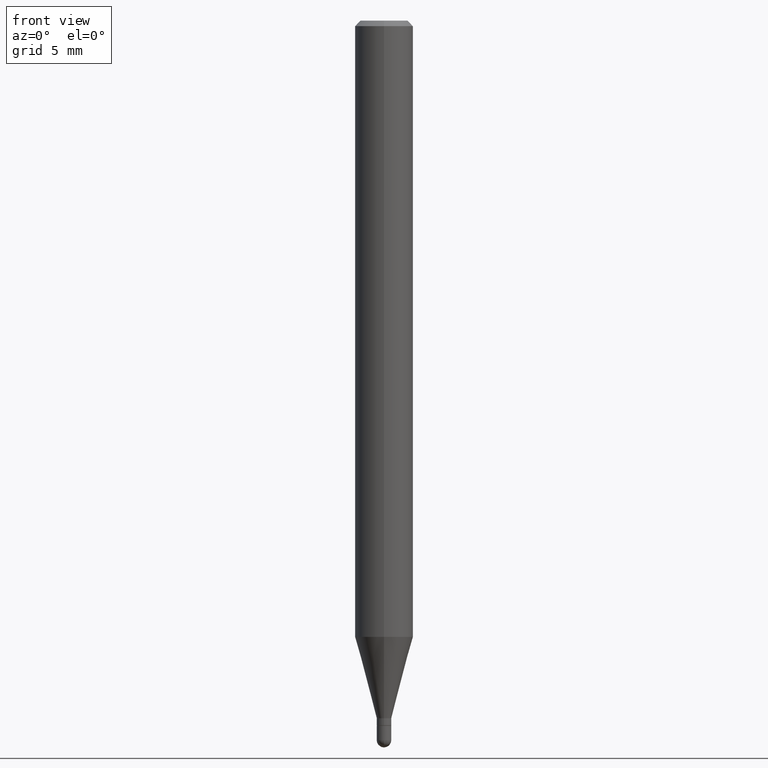
[diagram: clean part render]
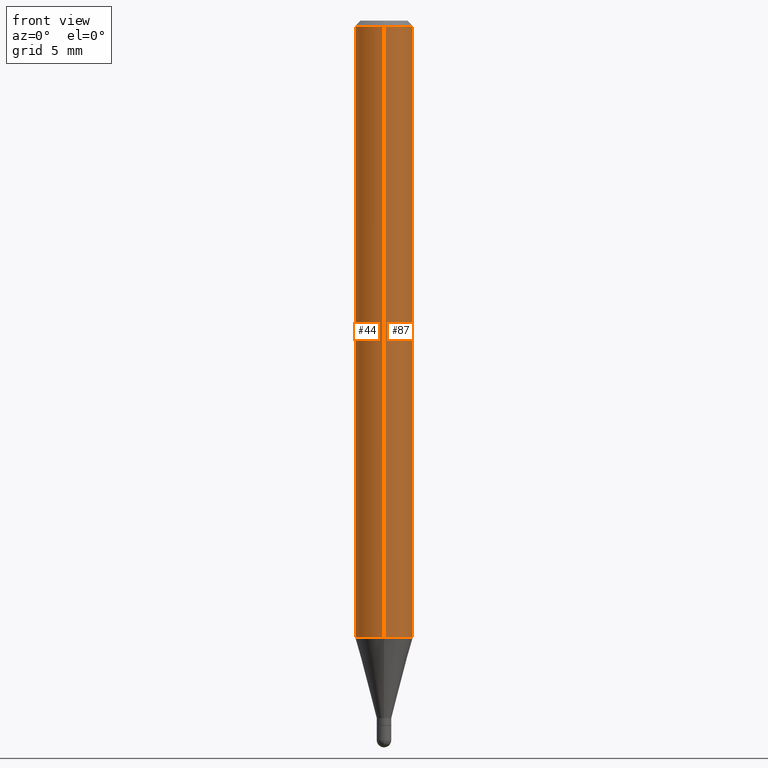
[diagram: same view with one multi-face feature highlighted, each face labeled with its STEP entity id]
A machine part, front view. The highlighted faces form ONE feature: a constant-radius fillet chain: 2 tangent blend faces with common blend radius 2.0002 mm. The faces share edges in the B-rep.
Their STEP definitions:
[1] entity #87 (Cylinder):
#16 = LINE ( 'NONE', #171, #182 ) ;
#22 = VERTEX_POINT ( 'NONE', #128 ) ;
#28 = LINE ( 'NONE', #504, #331 ) ;
#33 = CARTESIAN_POINT ( 'NONE',  ( -5.499083108677528180E-16, -0.07875000000000582923, -1.669122399813057989 ) ) ;
#52 = AXIS2_PLACEMENT_3D ( 'NONE', #98, #211, #343 ) ;
#58 = CIRCLE ( 'NONE', #108, 0.07875000000000000056 ) ;
#75 = CARTESIAN_POINT ( 'NONE',  ( 4.079796025343252111E-29, -5.830560560031684325E-15, -1.669122399813058433 ) ) ;
#87 = ADVANCED_FACE ( 'NONE', ( #493 ), #281, .T. ) ;
#88 = EDGE_CURVE ( 'NONE', #502, #22, #58, .T. ) ;
#98 = CARTESIAN_POINT ( 'NONE',  ( 0.000000000000000000, 0.000000000000000000, 0.000000000000000000 ) ) ;
#108 = AXIS2_PLACEMENT_3D ( 'NONE', #138, #340, #486 ) ;
#120 = EDGE_LOOP ( 'NONE', ( #364, #202, #419, #437 ) ) ;
#128 = CARTESIAN_POINT ( 'NONE',  ( 5.595524044111199211E-16, 0.07874999999999994504, -0.01500000000000004108 ) ) ;
#138 = CARTESIAN_POINT ( 'NONE',  ( 3.666414181907922070E-31, -5.239783997283198085E-17, -0.01499999999999976526 ) ) ;
#160 = DIRECTION ( 'NONE',  ( -6.982962677686264344E-15, -1.000000000000000000, 3.469013325287953293E-15 ) ) ;
#171 = CARTESIAN_POINT ( 'NONE',  ( 5.595524044110787031E-16, 0.07875000000000000056, -2.750886598573721673E-16 ) ) ;
#182 = VECTOR ( 'NONE', #363, 39.37007874015748143 ) ;
#202 = ORIENTED_EDGE ( 'NONE', *, *, #503, .T. ) ;
#211 = DIRECTION ( 'NONE',  ( -2.444276121271986138E-29, 3.493189331522186389E-15, 1.000000000000000000 ) ) ;
#233 = CARTESIAN_POINT ( 'NONE',  ( 5.595524044111194280E-16, 0.07874999999999415801, -1.669122399813058655 ) ) ;
#264 = DIRECTION ( 'NONE',  ( -2.444276121271985858E-29, 3.493189331522185995E-15, 1.000000000000000000 ) ) ;
#269 = DIRECTION ( 'NONE',  ( -2.444276121271986138E-29, 3.493189331522186389E-15, 1.000000000000000000 ) ) ;
#281 = CYLINDRICAL_SURFACE ( 'NONE', #52, 0.07875000000000000056 ) ;
#287 = CIRCLE ( 'NONE', #423, 0.07875000000000000056 ) ;
#299 = VERTEX_POINT ( 'NONE', #233 ) ;
#331 = VECTOR ( 'NONE', #264, 39.37007874015748143 ) ;
#340 = DIRECTION ( 'NONE',  ( -2.444276121271986138E-29, 3.493189331522186389E-15, 1.000000000000000000 ) ) ;
#341 = EDGE_CURVE ( 'NONE', #362, #299, #287, .T. ) ;
#343 = DIRECTION ( 'NONE',  ( -6.982962677686264344E-15, -1.000000000000000000, 3.493189331522186389E-15 ) ) ;
#362 = VERTEX_POINT ( 'NONE', #33 ) ;
#363 = DIRECTION ( 'NONE',  ( -2.444276121271985858E-29, 3.493189331522185995E-15, 1.000000000000000000 ) ) ;
#364 = ORIENTED_EDGE ( 'NONE', *, *, #341, .T. ) ;
#411 = CARTESIAN_POINT ( 'NONE',  ( -5.499083108677930499E-16, -0.07875000000000004219, -0.01499999999999948944 ) ) ;
#419 = ORIENTED_EDGE ( 'NONE', *, *, #88, .F. ) ;
#423 = AXIS2_PLACEMENT_3D ( 'NONE', #75, #269, #160 ) ;
#437 = ORIENTED_EDGE ( 'NONE', *, *, #455, .F. ) ;
#455 = EDGE_CURVE ( 'NONE', #362, #502, #28, .T. ) ;
#486 = DIRECTION ( 'NONE',  ( -6.982962677686264344E-15, -1.000000000000000000, 3.496114991891765576E-15 ) ) ;
#493 = FACE_OUTER_BOUND ( 'NONE', #120, .T. ) ;
#502 = VERTEX_POINT ( 'NONE', #411 ) ;
#503 = EDGE_CURVE ( 'NONE', #299, #22, #16, .T. ) ;
#504 = CARTESIAN_POINT ( 'NONE',  ( -5.499083108677933457E-16, -0.07875000000000000056, 2.750886598573721673E-16 ) ) ;
[2] entity #44 (Cylinder):
#11 = CIRCLE ( 'NONE', #302, 0.07875000000000000056 ) ;
#16 = LINE ( 'NONE', #171, #182 ) ;
#22 = VERTEX_POINT ( 'NONE', #128 ) ;
#28 = LINE ( 'NONE', #504, #331 ) ;
#33 = CARTESIAN_POINT ( 'NONE',  ( -5.499083108677528180E-16, -0.07875000000000582923, -1.669122399813057989 ) ) ;
#34 = CYLINDRICAL_SURFACE ( 'NONE', #250, 0.07875000000000000056 ) ;
#44 = ADVANCED_FACE ( 'NONE', ( #334 ), #34, .T. ) ;
#64 = ORIENTED_EDGE ( 'NONE', *, *, #205, .T. ) ;
#81 = ORIENTED_EDGE ( 'NONE', *, *, #291, .F. ) ;
#85 = CARTESIAN_POINT ( 'NONE',  ( 4.079796025343252111E-29, -5.830560560031684325E-15, -1.669122399813058433 ) ) ;
#126 = CIRCLE ( 'NONE', #345, 0.07875000000000000056 ) ;
#128 = CARTESIAN_POINT ( 'NONE',  ( 5.595524044111199211E-16, 0.07874999999999994504, -0.01500000000000004108 ) ) ;
#162 = ORIENTED_EDGE ( 'NONE', *, *, #455, .T. ) ;
#169 = DIRECTION ( 'NONE',  ( -2.444276121271986138E-29, 3.493189331522186389E-15, 1.000000000000000000 ) ) ;
#171 = CARTESIAN_POINT ( 'NONE',  ( 5.595524044110787031E-16, 0.07875000000000000056, -2.750886598573721673E-16 ) ) ;
#182 = VECTOR ( 'NONE', #363, 39.37007874015748143 ) ;
#188 = ORIENTED_EDGE ( 'NONE', *, *, #503, .F. ) ;
#190 = CARTESIAN_POINT ( 'NONE',  ( 0.000000000000000000, 0.000000000000000000, 0.000000000000000000 ) ) ;
#205 = EDGE_CURVE ( 'NONE', #299, #362, #11, .T. ) ;
#233 = CARTESIAN_POINT ( 'NONE',  ( 5.595524044111194280E-16, 0.07874999999999415801, -1.669122399813058655 ) ) ;
#250 = AXIS2_PLACEMENT_3D ( 'NONE', #190, #282, #352 ) ;
#264 = DIRECTION ( 'NONE',  ( -2.444276121271985858E-29, 3.493189331522185995E-15, 1.000000000000000000 ) ) ;
#282 = DIRECTION ( 'NONE',  ( -2.444276121271986138E-29, 3.493189331522186389E-15, 1.000000000000000000 ) ) ;
#291 = EDGE_CURVE ( 'NONE', #22, #502, #126, .T. ) ;
#293 = EDGE_LOOP ( 'NONE', ( #188, #64, #162, #81 ) ) ;
#299 = VERTEX_POINT ( 'NONE', #233 ) ;
#302 = AXIS2_PLACEMENT_3D ( 'NONE', #85, #169, #328 ) ;
#316 = DIRECTION ( 'NONE',  ( -6.982962677686264344E-15, -1.000000000000000000, 3.496114991891765576E-15 ) ) ;
#328 = DIRECTION ( 'NONE',  ( -6.982962677686264344E-15, -1.000000000000000000, 3.469013325287953293E-15 ) ) ;
#331 = VECTOR ( 'NONE', #264, 39.37007874015748143 ) ;
#334 = FACE_OUTER_BOUND ( 'NONE', #293, .T. ) ;
#345 = AXIS2_PLACEMENT_3D ( 'NONE', #409, #482, #316 ) ;
#352 = DIRECTION ( 'NONE',  ( -6.982962677686264344E-15, -1.000000000000000000, 3.493189331522186389E-15 ) ) ;
#362 = VERTEX_POINT ( 'NONE', #33 ) ;
#363 = DIRECTION ( 'NONE',  ( -2.444276121271985858E-29, 3.493189331522185995E-15, 1.000000000000000000 ) ) ;
#409 = CARTESIAN_POINT ( 'NONE',  ( 3.666414181907922070E-31, -5.239783997283198085E-17, -0.01499999999999976526 ) ) ;
#411 = CARTESIAN_POINT ( 'NONE',  ( -5.499083108677930499E-16, -0.07875000000000004219, -0.01499999999999948944 ) ) ;
#455 = EDGE_CURVE ( 'NONE', #362, #502, #28, .T. ) ;
#482 = DIRECTION ( 'NONE',  ( -2.444276121271986138E-29, 3.493189331522186389E-15, 1.000000000000000000 ) ) ;
#502 = VERTEX_POINT ( 'NONE', #411 ) ;
#503 = EDGE_CURVE ( 'NONE', #299, #22, #16, .T. ) ;
#504 = CARTESIAN_POINT ( 'NONE',  ( -5.499083108677933457E-16, -0.07875000000000000056, 2.750886598573721673E-16 ) ) ;